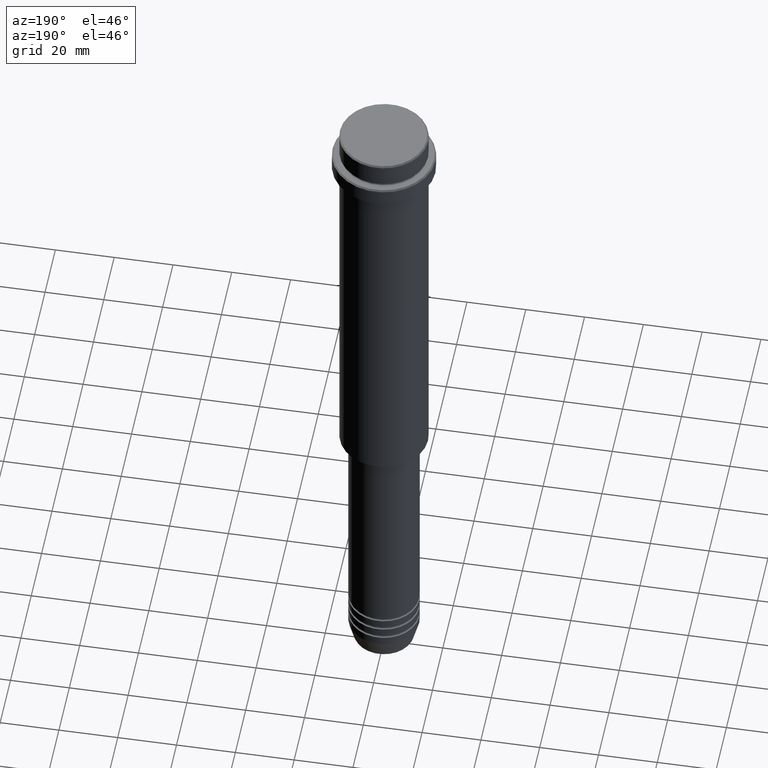
[diagram: clean part render]
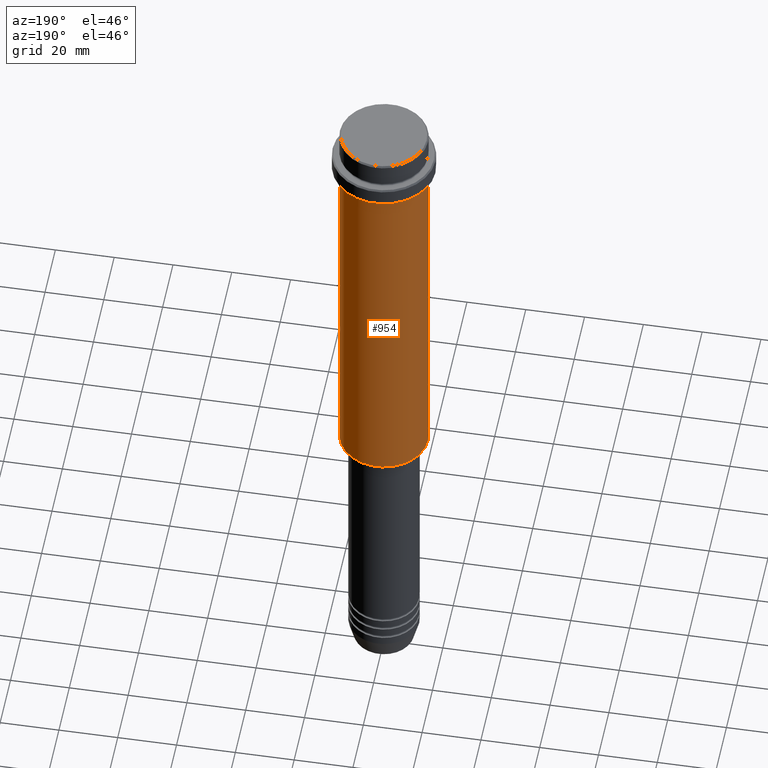
[diagram: same view with one face highlighted and labeled with its STEP entity id]
A machine part, auxiliary view. The second image highlights one B-rep face of the part: STEP entity #954.
In plain terms, the highlighted cylindrical surface (partial cylindrical patch) has radius 15 mm, axis along (-0, -0, 1).
Its self-contained STEP definition (entity closure, byte-faithful):
#33 = AXIS2_PLACEMENT_3D ( 'NONE', #989, #872, #769 ) ;
#40 = VERTEX_POINT ( 'NONE', #390 ) ;
#119 = ORIENTED_EDGE ( 'NONE', *, *, #925, .F. ) ;
#208 = ORIENTED_EDGE ( 'NONE', *, *, #652, .T. ) ;
#240 = EDGE_LOOP ( 'NONE', ( #496, #208, #119, #1080 ) ) ;
#310 = DIRECTION ( 'NONE',  ( -0.000000000000000000, -0.000000000000000000, 1.000000000000000000 ) ) ;
#390 = CARTESIAN_POINT ( 'NONE',  ( -15.00000000000000355, 1.836970198721029983E-15, -16.00000000000000000 ) ) ;
#393 = DIRECTION ( 'NONE',  ( -0.000000000000000000, -0.000000000000000000, 1.000000000000000000 ) ) ;
#399 = VECTOR ( 'NONE', #982, 1000.000000000000000 ) ;
#425 = AXIS2_PLACEMENT_3D ( 'NONE', #1141, #926, #1258 ) ;
#450 = CARTESIAN_POINT ( 'NONE',  ( -15.00000000000000000, 1.836970198721029589E-15, 0.000000000000000000 ) ) ;
#478 = CIRCLE ( 'NONE', #651, 15.00000000000000178 ) ;
#496 = ORIENTED_EDGE ( 'NONE', *, *, #664, .T. ) ;
#557 = LINE ( 'NONE', #1070, #399 ) ;
#650 = CIRCLE ( 'NONE', #33, 15.00000000000000000 ) ;
#651 = AXIS2_PLACEMENT_3D ( 'NONE', #934, #393, #1359 ) ;
#652 = EDGE_CURVE ( 'NONE', #1098, #40, #1200, .T. ) ;
#664 = EDGE_CURVE ( 'NONE', #988, #1098, #650, .T. ) ;
#708 = EDGE_CURVE ( 'NONE', #988, #798, #557, .T. ) ;
#715 = CARTESIAN_POINT ( 'NONE',  ( 15.00000000000000000, 0.000000000000000000, -144.5000000000000568 ) ) ;
#769 = DIRECTION ( 'NONE',  ( -1.000000000000000000, 0.000000000000000000, 0.000000000000000000 ) ) ;
#798 = VERTEX_POINT ( 'NONE', #999 ) ;
#872 = DIRECTION ( 'NONE',  ( -0.000000000000000000, -0.000000000000000000, 1.000000000000000000 ) ) ;
#925 = EDGE_CURVE ( 'NONE', #798, #40, #478, .T. ) ;
#926 = DIRECTION ( 'NONE',  ( -0.000000000000000000, -0.000000000000000000, 1.000000000000000000 ) ) ;
#934 = CARTESIAN_POINT ( 'NONE',  ( 0.000000000000000000, 0.000000000000000000, -16.00000000000000000 ) ) ;
#954 = ADVANCED_FACE ( 'NONE', ( #1037 ), #1058, .T. ) ;
#982 = DIRECTION ( 'NONE',  ( -0.000000000000000000, -0.000000000000000000, 1.000000000000000000 ) ) ;
#988 = VERTEX_POINT ( 'NONE', #715 ) ;
#989 = CARTESIAN_POINT ( 'NONE',  ( 0.000000000000000000, 0.000000000000000000, -144.5000000000000568 ) ) ;
#999 = CARTESIAN_POINT ( 'NONE',  ( 15.00000000000000178, 0.000000000000000000, -16.00000000000000000 ) ) ;
#1037 = FACE_OUTER_BOUND ( 'NONE', #240, .T. ) ;
#1058 = CYLINDRICAL_SURFACE ( 'NONE', #425, 15.00000000000000000 ) ;
#1070 = CARTESIAN_POINT ( 'NONE',  ( 15.00000000000000000, 0.000000000000000000, 0.000000000000000000 ) ) ;
#1080 = ORIENTED_EDGE ( 'NONE', *, *, #708, .F. ) ;
#1098 = VERTEX_POINT ( 'NONE', #1294 ) ;
#1141 = CARTESIAN_POINT ( 'NONE',  ( 0.000000000000000000, 0.000000000000000000, 0.000000000000000000 ) ) ;
#1200 = LINE ( 'NONE', #450, #1266 ) ;
#1258 = DIRECTION ( 'NONE',  ( 1.000000000000000000, 0.000000000000000000, 0.000000000000000000 ) ) ;
#1266 = VECTOR ( 'NONE', #310, 1000.000000000000000 ) ;
#1294 = CARTESIAN_POINT ( 'NONE',  ( -15.00000000000000000, 1.836970198721029589E-15, -144.5000000000000568 ) ) ;
#1359 = DIRECTION ( 'NONE',  ( 1.000000000000000000, 0.000000000000000000, 0.000000000000000000 ) ) ;